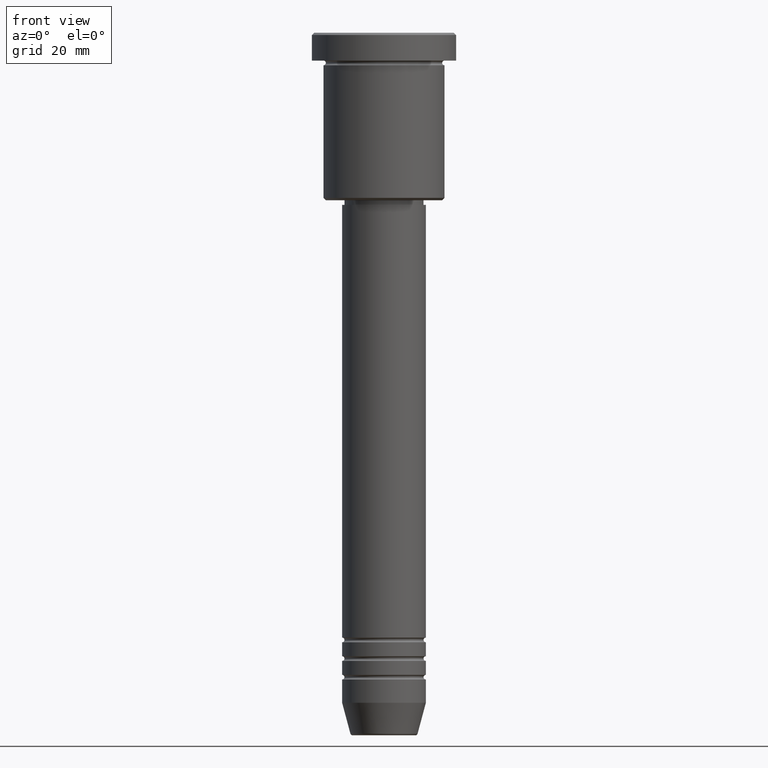
[diagram: clean part render]
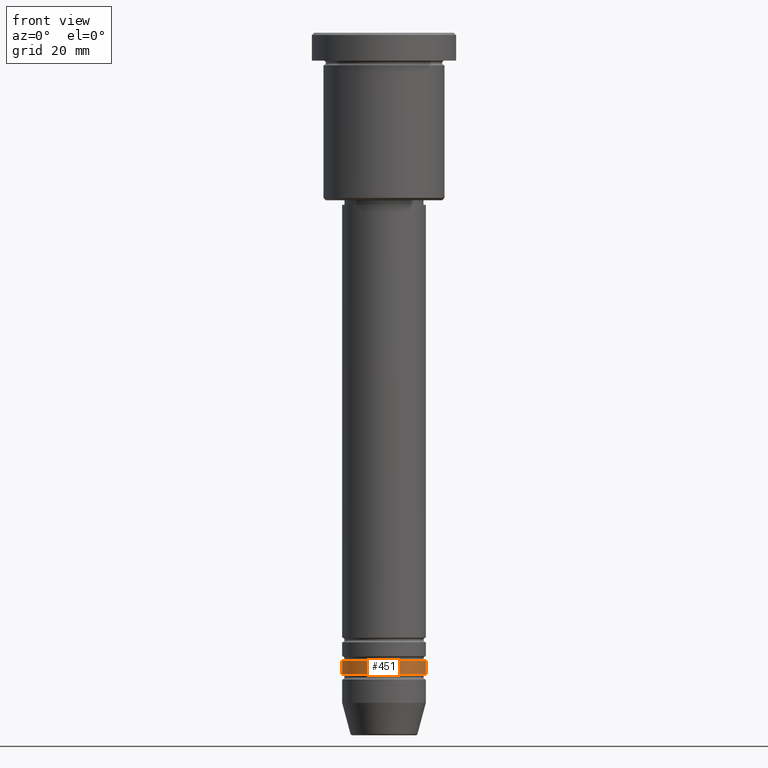
[diagram: same view with one face highlighted and labeled with its STEP entity id]
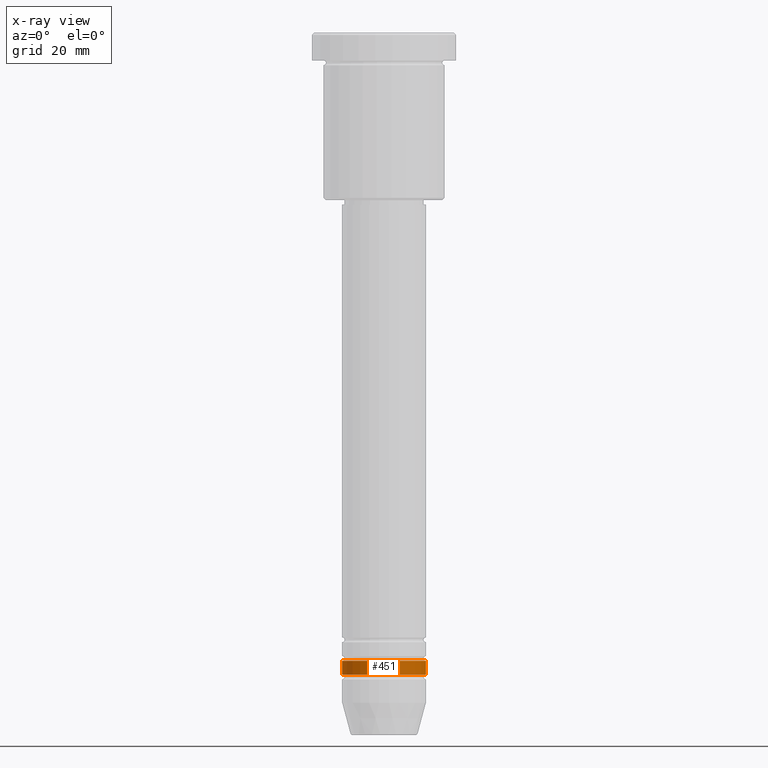
[diagram: x-ray of the same camera — body ghosted, the highlighted face saturated]
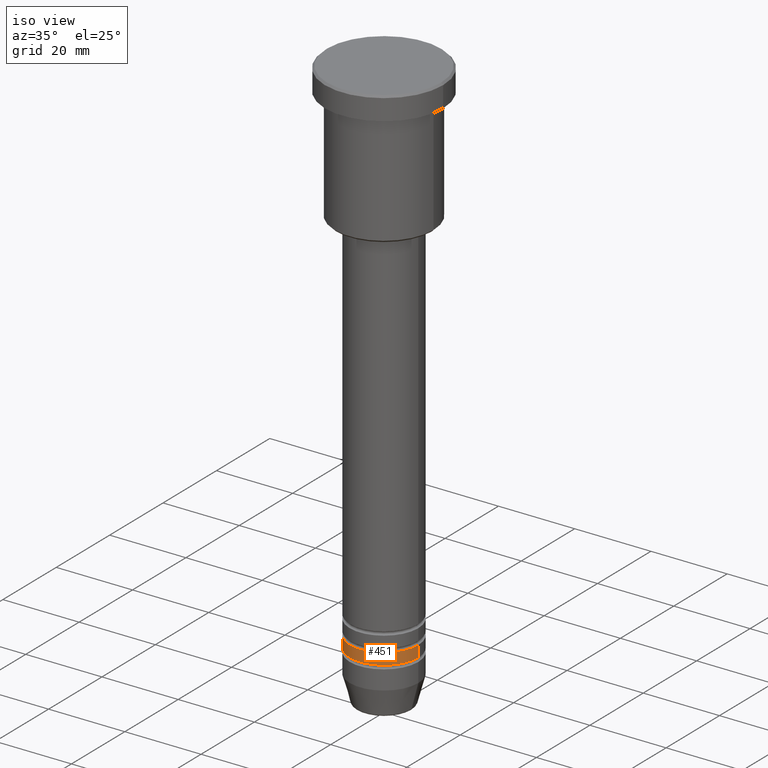
[diagram: same view with one face highlighted and labeled with its STEP entity id]
A machine part, front view. The second image highlights one B-rep face of the part: STEP entity #451.
The next image is the same camera in x-ray: the body ghosted, the highlighted face saturated — about 0% of this face is hidden behind the body in this view.
A second angle (iso view) of the same face is appended — the face is thin or edge-on in the first view.
In plain terms, the highlighted cylindrical surface (partial cylindrical patch) has radius 9 mm, axis along (-0, -0, 1).
Its self-contained STEP definition (entity closure, byte-faithful):
#21 = VECTOR ( 'NONE', #704, 1000.000000000000000 ) ;
#80 = AXIS2_PLACEMENT_3D ( 'NONE', #1026, #205, #575 ) ;
#116 = ORIENTED_EDGE ( 'NONE', *, *, #739, .T. ) ;
#168 = VERTEX_POINT ( 'NONE', #787 ) ;
#180 = DIRECTION ( 'NONE',  ( -0.000000000000000000, -0.000000000000000000, 1.000000000000000000 ) ) ;
#205 = DIRECTION ( 'NONE',  ( -0.000000000000000000, -0.000000000000000000, 1.000000000000000000 ) ) ;
#234 = EDGE_CURVE ( 'NONE', #934, #698, #357, .T. ) ;
#244 = CARTESIAN_POINT ( 'NONE',  ( 9.000000000000001776, 0.000000000000000000, -137.9999999999998863 ) ) ;
#298 = LINE ( 'NONE', #916, #1060 ) ;
#341 = DIRECTION ( 'NONE',  ( 1.000000000000000000, 0.000000000000000000, 0.000000000000000000 ) ) ;
#343 = VERTEX_POINT ( 'NONE', #800 ) ;
#357 = LINE ( 'NONE', #987, #21 ) ;
#364 = CARTESIAN_POINT ( 'NONE',  ( 0.000000000000000000, 0.000000000000000000, -137.9999999999998863 ) ) ;
#369 = DIRECTION ( 'NONE',  ( -0.000000000000000000, -0.000000000000000000, 1.000000000000000000 ) ) ;
#386 = DIRECTION ( 'NONE',  ( 1.000000000000000000, 0.000000000000000000, 0.000000000000000000 ) ) ;
#422 = EDGE_CURVE ( 'NONE', #343, #698, #976, .T. ) ;
#451 = ADVANCED_FACE ( 'NONE', ( #652 ), #1008, .T. ) ;
#454 = EDGE_CURVE ( 'NONE', #168, #343, #298, .T. ) ;
#460 = CARTESIAN_POINT ( 'NONE',  ( 9.000000000000000000, 0.000000000000000000, -134.9999999999998863 ) ) ;
#481 = ORIENTED_EDGE ( 'NONE', *, *, #234, .T. ) ;
#575 = DIRECTION ( 'NONE',  ( 1.000000000000000000, 0.000000000000000000, 0.000000000000000000 ) ) ;
#625 = AXIS2_PLACEMENT_3D ( 'NONE', #364, #829, #341 ) ;
#647 = CARTESIAN_POINT ( 'NONE',  ( 0.000000000000000000, 0.000000000000000000, 0.000000000000000000 ) ) ;
#652 = FACE_OUTER_BOUND ( 'NONE', #1039, .T. ) ;
#662 = CIRCLE ( 'NONE', #625, 9.000000000000001776 ) ;
#684 = ORIENTED_EDGE ( 'NONE', *, *, #422, .F. ) ;
#698 = VERTEX_POINT ( 'NONE', #460 ) ;
#704 = DIRECTION ( 'NONE',  ( -0.000000000000000000, -0.000000000000000000, 1.000000000000000000 ) ) ;
#739 = EDGE_CURVE ( 'NONE', #168, #934, #662, .T. ) ;
#782 = ORIENTED_EDGE ( 'NONE', *, *, #454, .F. ) ;
#787 = CARTESIAN_POINT ( 'NONE',  ( -9.000000000000001776, 1.102182119232617911E-15, -137.9999999999998863 ) ) ;
#800 = CARTESIAN_POINT ( 'NONE',  ( -9.000000000000000000, 1.102182119232617714E-15, -134.9999999999998863 ) ) ;
#829 = DIRECTION ( 'NONE',  ( -0.000000000000000000, -0.000000000000000000, 1.000000000000000000 ) ) ;
#884 = AXIS2_PLACEMENT_3D ( 'NONE', #647, #369, #386 ) ;
#916 = CARTESIAN_POINT ( 'NONE',  ( -9.000000000000001776, 1.102182119232617911E-15, 0.000000000000000000 ) ) ;
#934 = VERTEX_POINT ( 'NONE', #244 ) ;
#976 = CIRCLE ( 'NONE', #80, 9.000000000000000000 ) ;
#987 = CARTESIAN_POINT ( 'NONE',  ( 9.000000000000001776, 0.000000000000000000, 0.000000000000000000 ) ) ;
#1008 = CYLINDRICAL_SURFACE ( 'NONE', #884, 9.000000000000001776 ) ;
#1026 = CARTESIAN_POINT ( 'NONE',  ( 0.000000000000000000, 0.000000000000000000, -134.9999999999998863 ) ) ;
#1039 = EDGE_LOOP ( 'NONE', ( #782, #116, #481, #684 ) ) ;
#1060 = VECTOR ( 'NONE', #180, 1000.000000000000000 ) ;